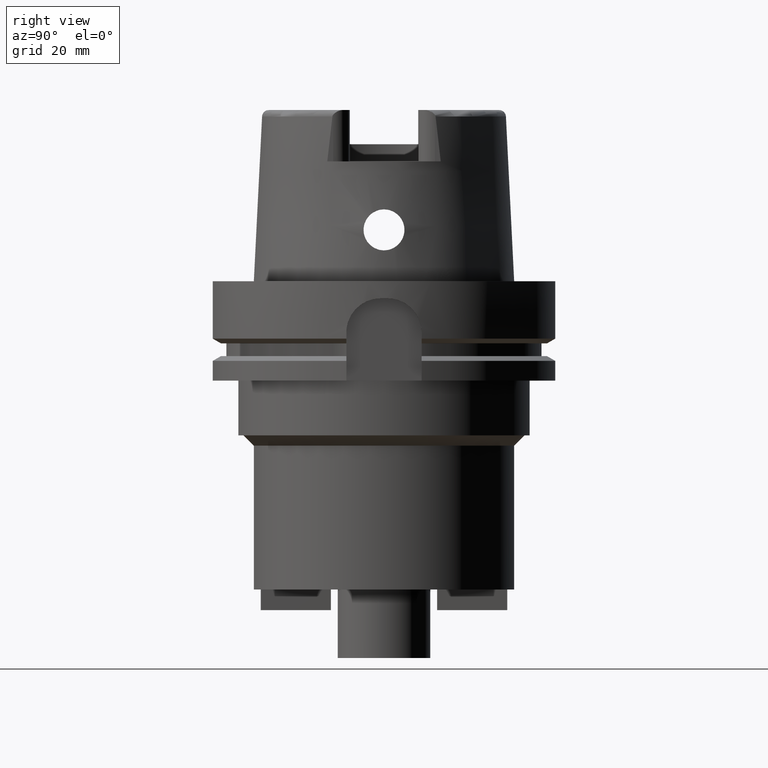
[diagram: clean part render]
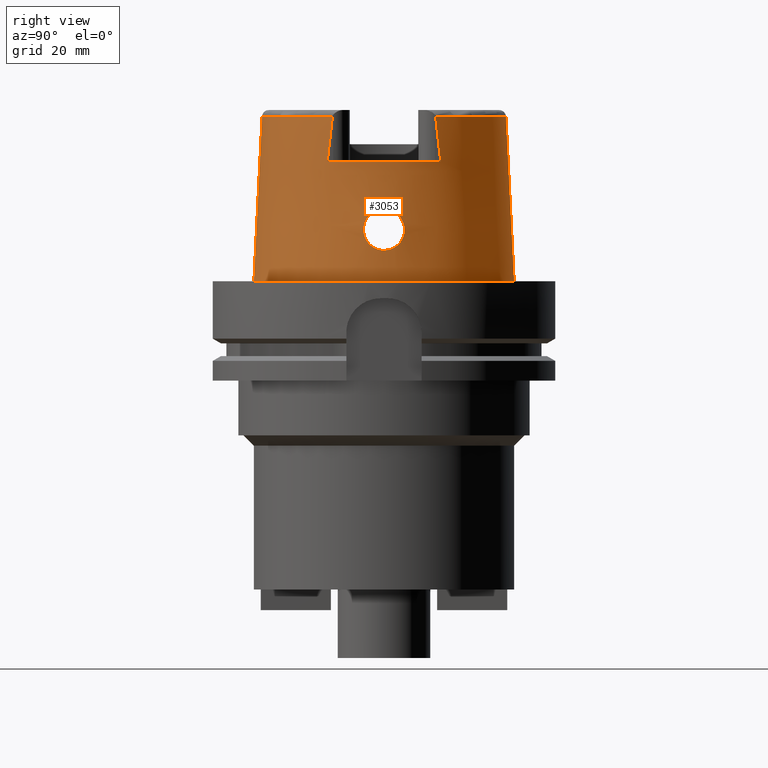
[diagram: same view with one face highlighted and labeled with its STEP entity id]
A machine part, right view. The second image highlights one B-rep face of the part: STEP entity #3053.
In plain terms, the highlighted conical surface has half-angle 2.862 deg.
Its self-contained STEP definition (entity closure, byte-faithful):
#268=CARTESIAN_POINT('',(3.225000552017E1,-1.506439825998E1,4.810004194739E1));
#273=CARTESIAN_POINT('',(0.E0,0.E0,4.809987853799E1));
#274=DIRECTION('',(0.E0,0.E0,-1.E0));
#275=DIRECTION('',(9.060280460805E-1,-4.232176505246E-1,0.E0));
#276=AXIS2_PLACEMENT_3D('',#273,#274,#275);
#299=DIRECTION('',(5.154182075151E-5,-4.993927430816E-2,-9.987522546783E-1));
#300=VECTOR('',#299,4.815996991514E1);
#301=CARTESIAN_POINT('',(-2.482252536761E-3,-3.559494263425E1,
4.809987853799E1));
#302=LINE('',#301,#300);
#356=CARTESIAN_POINT('',(3.224999527489E1,1.655287543599E1,3.5E1));
#357=CARTESIAN_POINT('',(3.224999527489E1,1.639226210430E1,3.646677430492E1));
#358=CARTESIAN_POINT('',(3.224999958003E1,1.606837254185E1,3.939292747228E1));
#359=CARTESIAN_POINT('',(3.225000855756E1,1.557203233994E1,4.375938232253E1));
#360=CARTESIAN_POINT('',(3.224998031234E1,1.523513261877E1,4.665592284341E1));
#361=CARTESIAN_POINT('',(3.224998031234E1,1.506460277792E1,4.809931525723E1));
#366=DIRECTION('',(-5.154182075159E-5,4.993927430816E-2,-9.987522546783E-1));
#367=VECTOR('',#366,4.815996991514E1);
#368=CARTESIAN_POINT('',(2.482252536765E-3,3.559494263425E1,4.809987853799E1));
#369=LINE('',#368,#367);
#373=CARTESIAN_POINT('',(3.225000552017E1,-1.506439825998E1,4.810004194739E1));
#374=CARTESIAN_POINT('',(3.225000552017E1,-1.523503290321E1,4.665577799039E1));
#375=CARTESIAN_POINT('',(3.225000026293E1,-1.557219472355E1,4.376011583005E1));
#376=CARTESIAN_POINT('',(3.224999079948E1,-1.606856473685E1,3.939344259315E1));
#377=CARTESIAN_POINT('',(3.225002129259E1,-1.639212166417E1,3.646699412941E1));
#378=CARTESIAN_POINT('',(3.225002129259E1,-1.655276054267E1,3.5E1));
#383=CARTESIAN_POINT('',(3.694998175923E1,-1.503990973345E-13,2.1E1));
#384=CARTESIAN_POINT('',(3.694998175923E1,-4.797802459619E-1,2.1E1));
#385=CARTESIAN_POINT('',(3.693671039676E1,-1.442255700477E0,2.088419789910E1));
#386=CARTESIAN_POINT('',(3.688228870556E1,-2.811045087229E0,2.036825121477E1));
#387=CARTESIAN_POINT('',(3.680969564375E1,-4.022464895301E0,1.953029681800E1));
#388=CARTESIAN_POINT('',(3.674467907194E1,-4.978631049402E0,1.845063897974E1));
#389=CARTESIAN_POINT('',(3.670932444561E1,-5.659312641167E0,1.716248633479E1));
#390=CARTESIAN_POINT('',(3.672366294059E1,-6.010488837816E0,1.575504519632E1));
#391=CARTESIAN_POINT('',(3.679583247405E1,-6.017563505330E0,1.430788701440E1));
#392=CARTESIAN_POINT('',(3.692116509402E1,-5.683679439542E0,1.290170422257E1));
#393=CARTESIAN_POINT('',(3.708601737554E1,-5.012074069507E0,1.159656882042E1));
#394=CARTESIAN_POINT('',(3.726045450309E1,-4.056873430424E0,1.049755868155E1));
#395=CARTESIAN_POINT('',(3.742032924640E1,-2.818768243717E0,9.632672425074E0));
#396=CARTESIAN_POINT('',(3.752613267857E1,-1.431085209601E0,9.112674872615E0));
#397=CARTESIAN_POINT('',(3.755000165825E1,-4.733974155655E-1,9.E0));
#398=CARTESIAN_POINT('',(3.755000165825E1,0.E0,9.E0));
#403=CARTESIAN_POINT('',(3.755000165825E1,0.E0,9.E0));
#404=CARTESIAN_POINT('',(3.755000165825E1,4.745242574384E-1,9.E0));
#405=CARTESIAN_POINT('',(3.752592541407E1,1.428580845193E0,9.113727050998E0));
#406=CARTESIAN_POINT('',(3.742293454489E1,2.788270921028E0,9.619838954986E0));
#407=CARTESIAN_POINT('',(3.726762910757E1,4.008344286123E0,1.045740058336E1));
#408=CARTESIAN_POINT('',(3.709615421451E1,4.963541130071E0,1.152714710369E1));
#409=CARTESIAN_POINT('',(3.692869601247E1,5.658833559575E0,1.283084753337E1));
#410=CARTESIAN_POINT('',(3.679916096210E1,6.013218808078E0,1.425655288674E1));
#411=CARTESIAN_POINT('',(3.672466049034E1,6.015447615447E0,1.571910830013E1));
#412=CARTESIAN_POINT('',(3.670906046467E1,5.671873280289E0,1.712851458096E1));
#413=CARTESIAN_POINT('',(3.674325333292E1,5.000384521083E0,1.841933773581E1));
#414=CARTESIAN_POINT('',(3.680809949245E1,4.046512239073E0,1.950979693093E1));
#415=CARTESIAN_POINT('',(3.688135283473E1,2.830581559675E0,2.035906184266E1));
#416=CARTESIAN_POINT('',(3.693655762266E1,1.451293892341E0,2.088292280471E1));
#417=CARTESIAN_POINT('',(3.694998175923E1,4.826340005432E-1,2.1E1));
#418=CARTESIAN_POINT('',(3.694998175923E1,-1.503990973345E-13,2.1E1));
#453=CARTESIAN_POINT('',(0.E0,0.E0,3.5E1));
#454=DIRECTION('',(0.E0,0.E0,-1.E0));
#455=DIRECTION('',(8.896561898443E-1,4.566309931135E-1,0.E0));
#456=AXIS2_PLACEMENT_3D('',#453,#454,#455);
#2068=CARTESIAN_POINT('',(0.E0,0.E0,1.023181539495E-12));
#2069=DIRECTION('',(0.E0,0.E0,1.E0));
#2070=DIRECTION('',(0.E0,-1.E0,0.E0));
#2071=AXIS2_PLACEMENT_3D('',#2068,#2069,#2070);
#2420=CARTESIAN_POINT('',(0.E0,0.E0,4.809987853799E1));
#2421=DIRECTION('',(0.E0,0.E0,-1.E0));
#2422=DIRECTION('',(0.E0,1.E0,0.E0));
#2423=AXIS2_PLACEMENT_3D('',#2420,#2421,#2422);
#2506=CARTESIAN_POINT('',(0.E0,3.559494289391E1,4.809987853799E1));
#2507=VERTEX_POINT('',#2506);
#2508=CARTESIAN_POINT('',(3.224994093704E1,1.506456999646E1,4.809987853799E1));
#2509=VERTEX_POINT('',#2508);
#2513=VERTEX_POINT('',#268);
#2514=CARTESIAN_POINT('',(1.065814103640E-14,-3.559494289391E1,
4.809987853799E1));
#2515=VERTEX_POINT('',#2514);
#2516=CARTESIAN_POINT('',(0.E0,-3.800001658252E1,6.892264536873E-13));
#2517=VERTEX_POINT('',#2516);
#2518=CARTESIAN_POINT('',(0.E0,3.800001658252E1,1.023181539495E-12));
#2519=VERTEX_POINT('',#2518);
#2522=CARTESIAN_POINT('',(3.225E1,1.655285457013E1,3.5E1));
#2523=CARTESIAN_POINT('',(3.225E1,-1.655285457013E1,3.5E1));
#2524=VERTEX_POINT('',#2522);
#2525=VERTEX_POINT('',#2523);
#2526=VERTEX_POINT('',#383);
#2527=VERTEX_POINT('',#398);
#3027=CARTESIAN_POINT('',(0.E0,0.E0,2.404993926900E1));
#3028=DIRECTION('',(0.E0,0.E0,-1.E0));
#3029=DIRECTION('',(0.E0,-1.E0,0.E0));
#3030=AXIS2_PLACEMENT_3D('',#3027,#3028,#3029);
#3031=CONICAL_SURFACE('',#3030,3.679747973821E1,2.8625E0);
#3033=ORIENTED_EDGE('',*,*,#3032,.F.);
#3035=ORIENTED_EDGE('',*,*,#3034,.T.);
#3037=ORIENTED_EDGE('',*,*,#3036,.F.);
#3038=ORIENTED_EDGE('',*,*,#3012,.T.);
#3040=ORIENTED_EDGE('',*,*,#3039,.F.);
#3041=ORIENTED_EDGE('',*,*,#3008,.F.);
#3042=ORIENTED_EDGE('',*,*,#2980,.F.);
#3044=ORIENTED_EDGE('',*,*,#3043,.T.);
#3045=EDGE_LOOP('',(#3033,#3035,#3037,#3038,#3040,#3041,#3042,#3044));
#3046=FACE_OUTER_BOUND('',#3045,.F.);
#3048=ORIENTED_EDGE('',*,*,#3047,.T.);
#3050=ORIENTED_EDGE('',*,*,#3049,.T.);
#3051=EDGE_LOOP('',(#3048,#3050));
#3052=FACE_BOUND('',#3051,.F.);
#277=CIRCLE('',#276,3.559494289391E1);
#362=B_SPLINE_CURVE_WITH_KNOTS('',3,(#356,#357,#358,#359,#360,#361),
.UNSPECIFIED.,.F.,.F.,(4,1,1,4),(0.E0,3.333333333333E-1,6.666666666667E-1,1.E0),
.UNSPECIFIED.);
#379=B_SPLINE_CURVE_WITH_KNOTS('',3,(#373,#374,#375,#376,#377,#378),
.UNSPECIFIED.,.F.,.F.,(4,1,1,4),(0.E0,3.333333333333E-1,6.666666666667E-1,1.E0),
.UNSPECIFIED.);
#399=B_SPLINE_CURVE_WITH_KNOTS('',3,(#383,#384,#385,#386,#387,#388,#389,#390,
#391,#392,#393,#394,#395,#396,#397,#398),.UNSPECIFIED.,.F.,.F.,(4,1,1,1,1,1,1,1,
1,1,1,1,1,4),(0.E0,7.692307692308E-2,1.538461538462E-1,2.307692307692E-1,
3.076923076923E-1,3.846153846154E-1,4.615384615385E-1,5.384615384615E-1,
6.153846153846E-1,6.923076923077E-1,7.692307692308E-1,8.461538461538E-1,
9.230769230769E-1,1.E0),.UNSPECIFIED.);
#419=B_SPLINE_CURVE_WITH_KNOTS('',3,(#403,#404,#405,#406,#407,#408,#409,#410,
#411,#412,#413,#414,#415,#416,#417,#418),.UNSPECIFIED.,.F.,.F.,(4,1,1,1,1,1,1,1,
1,1,1,1,1,4),(0.E0,7.692307692308E-2,1.538461538462E-1,2.307692307692E-1,
3.076923076923E-1,3.846153846154E-1,4.615384615385E-1,5.384615384615E-1,
6.153846153846E-1,6.923076923077E-1,7.692307692308E-1,8.461538461538E-1,
9.230769230769E-1,1.E0),.UNSPECIFIED.);
#457=CIRCLE('',#456,3.624995854370E1);
#2072=CIRCLE('',#2071,3.800001658252E1);
#2424=CIRCLE('',#2423,3.559494289391E1);
#2980=EDGE_CURVE('',#2513,#2515,#277,.T.);
#3008=EDGE_CURVE('',#2515,#2517,#302,.T.);
#3012=EDGE_CURVE('',#2507,#2519,#369,.T.);
#3032=EDGE_CURVE('',#2524,#2525,#457,.T.);
#3034=EDGE_CURVE('',#2524,#2509,#362,.T.);
#3036=EDGE_CURVE('',#2507,#2509,#2424,.T.);
#3039=EDGE_CURVE('',#2517,#2519,#2072,.T.);
#3043=EDGE_CURVE('',#2513,#2525,#379,.T.);
#3047=EDGE_CURVE('',#2526,#2527,#399,.T.);
#3049=EDGE_CURVE('',#2527,#2526,#419,.T.);
#3053=ADVANCED_FACE('',(#3046,#3052),#3031,.T.);